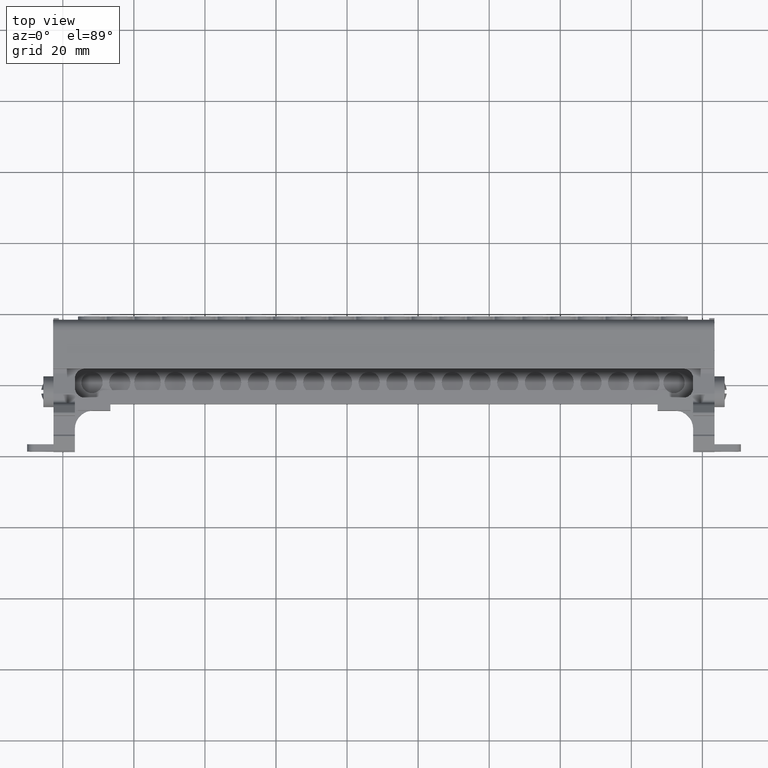
[diagram: clean part render]
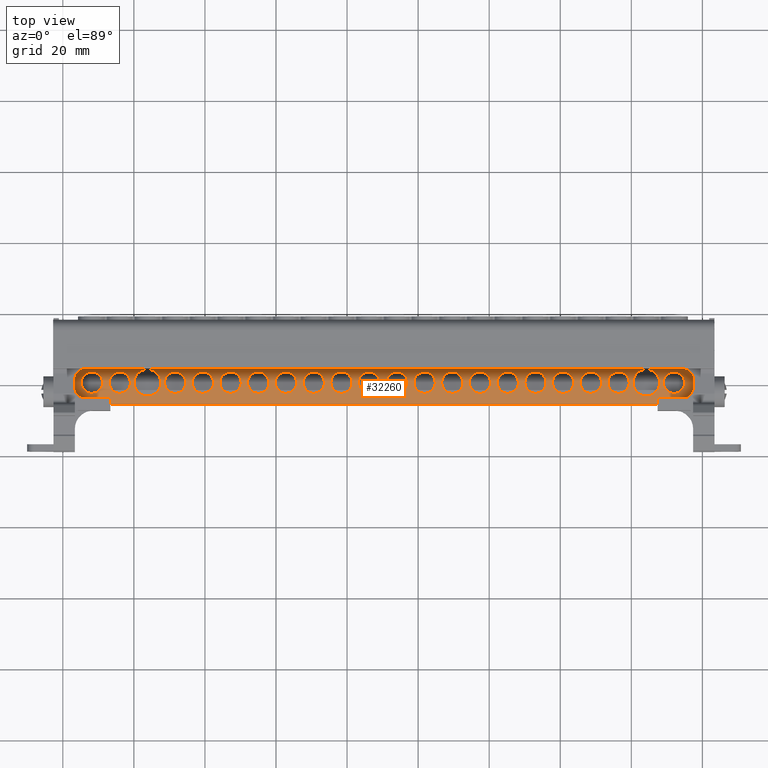
[diagram: same view with one face highlighted and labeled with its STEP entity id]
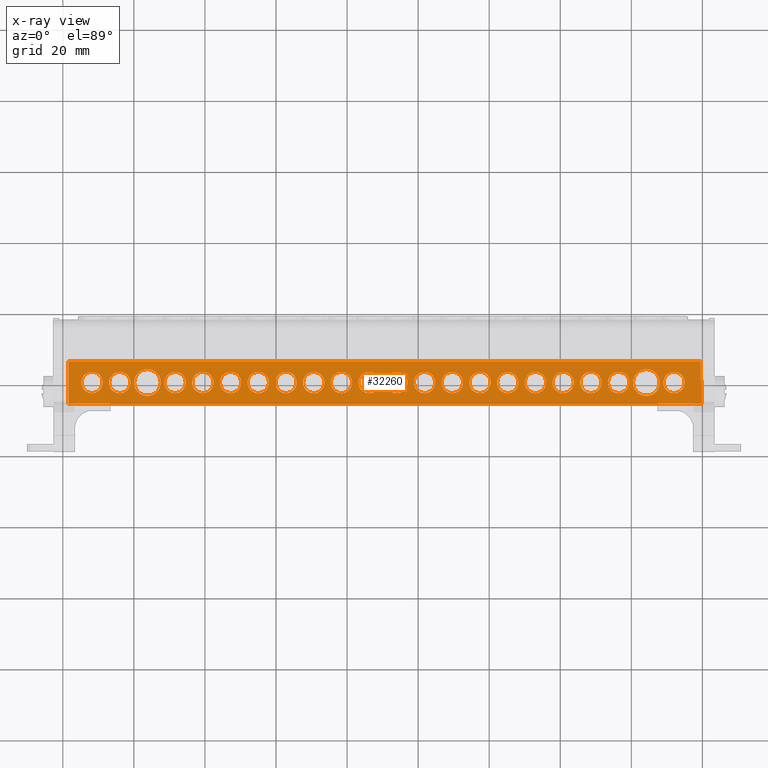
[diagram: x-ray of the same camera — body ghosted, the highlighted face saturated]
A machine part, top view. The second image highlights one B-rep face of the part: STEP entity #32260.
The next image is the same camera in x-ray: the body ghosted, the highlighted face saturated — about 0% of this face is hidden behind the body in this view.
In plain terms, the highlighted planar face has unit normal (0, 0, -1).
Its self-contained STEP definition (entity closure, byte-faithful):
#3568 = LINE ( 'NONE', #3598, #35998 ) ;
#3583 = DIRECTION ( 'NONE',  ( -1.100161628464488100E-014, 1.000000000000000000, 0.0000000000000000000 ) ) ;
#3598 = CARTESIAN_POINT ( 'NONE',  ( 87.39460350631402700, -33.46391012921537800, 99.25723811290791300 ) ) ;
#3623 = DIRECTION ( 'NONE',  ( 1.000000000000000000, 0.0000000000000000000, 0.0000000000000000000 ) ) ;
#3626 = DIRECTION ( 'NONE',  ( 0.0000000000000000000, 0.0000000000000000000, 1.000000000000000000 ) ) ;
#3637 = CARTESIAN_POINT ( 'NONE',  ( 68.61460350631354300, -39.46391012921721100, 99.25723811290791300 ) ) ;
#3641 = CARTESIAN_POINT ( 'NONE',  ( 53.01460350631354100, -39.46391012921721100, 99.25723811290791300 ) ) ;
#3647 = DIRECTION ( 'NONE',  ( 0.0000000000000000000, 0.0000000000000000000, 1.000000000000000000 ) ) ;
#3667 = DIRECTION ( 'NONE',  ( 1.000000000000000000, 0.0000000000000000000, 0.0000000000000000000 ) ) ;
#3757 = DIRECTION ( 'NONE',  ( 1.000000000000000000, 0.0000000000000000000, 0.0000000000000000000 ) ) ;
#3785 = DIRECTION ( 'NONE',  ( 0.0000000000000000000, 0.0000000000000000000, 1.000000000000000000 ) ) ;
#3789 = CARTESIAN_POINT ( 'NONE',  ( 60.81460350631353900, -39.46391012921721100, 99.25723811290791300 ) ) ;
#6039 = DIRECTION ( 'NONE',  ( 0.0000000000000000000, 0.0000000000000000000, 1.000000000000000000 ) ) ;
#6058 = DIRECTION ( 'NONE',  ( 1.000000000000000000, 0.0000000000000000000, 0.0000000000000000000 ) ) ;
#6059 = DIRECTION ( 'NONE',  ( 1.000000000000000000, 0.0000000000000000000, 0.0000000000000000000 ) ) ;
#6061 = CARTESIAN_POINT ( 'NONE',  ( -24.98539649368644800, -39.46391012921721100, 99.25723811290791300 ) ) ;
#6064 = CARTESIAN_POINT ( 'NONE',  ( 21.81460350631355300, -39.46391012921721100, 99.25723811290791300 ) ) ;
#6068 = DIRECTION ( 'NONE',  ( 0.0000000000000000000, 0.0000000000000000000, 1.000000000000000000 ) ) ;
#6070 = DIRECTION ( 'NONE',  ( 0.0000000000000000000, 0.0000000000000000000, 1.000000000000000000 ) ) ;
#6075 = DIRECTION ( 'NONE',  ( 1.000000000000000000, 0.0000000000000000000, 0.0000000000000000000 ) ) ;
#6077 = CARTESIAN_POINT ( 'NONE',  ( 37.41460350631355400, -39.46391012921721100, 99.25723811290791300 ) ) ;
#6082 = CARTESIAN_POINT ( 'NONE',  ( 29.61460350631355400, -39.46391012921721100, 99.25723811290791300 ) ) ;
#6083 = DIRECTION ( 'NONE',  ( 0.0000000000000000000, 0.0000000000000000000, 1.000000000000000000 ) ) ;
#6096 = DIRECTION ( 'NONE',  ( 1.000000000000000000, 0.0000000000000000000, 0.0000000000000000000 ) ) ;
#6136 = CARTESIAN_POINT ( 'NONE',  ( -9.385396493686446500, -39.46391012921721100, 99.25723811290791300 ) ) ;
#6137 = DIRECTION ( 'NONE',  ( 0.0000000000000000000, 0.0000000000000000000, 1.000000000000000000 ) ) ;
#6139 = DIRECTION ( 'NONE',  ( 1.000000000000000000, 0.0000000000000000000, 0.0000000000000000000 ) ) ;
#6584 = DIRECTION ( 'NONE',  ( 0.0000000000000000000, 0.0000000000000000000, 1.000000000000000000 ) ) ;
#6595 = CARTESIAN_POINT ( 'NONE',  ( 37.41460350631355400, -39.46391012921721100, 99.25723811290791300 ) ) ;
#6596 = DIRECTION ( 'NONE',  ( 0.0000000000000000000, 0.0000000000000000000, 1.000000000000000000 ) ) ;
#6602 = CARTESIAN_POINT ( 'NONE',  ( -63.98539649368643700, -39.46391012921720400, 99.25723811290791300 ) ) ;
#6603 = DIRECTION ( 'NONE',  ( 0.0000000000000000000, 0.0000000000000000000, 1.000000000000000000 ) ) ;
#6604 = CARTESIAN_POINT ( 'NONE',  ( -48.38539649368645000, -39.46391012921721100, 99.25723811290791300 ) ) ;
#6606 = DIRECTION ( 'NONE',  ( 1.000000000000000000, 0.0000000000000000000, 0.0000000000000000000 ) ) ;
#6608 = DIRECTION ( 'NONE',  ( 1.000000000000000000, 0.0000000000000000000, 0.0000000000000000000 ) ) ;
#6614 = LINE ( 'NONE', #6621, #17641 ) ;
#6615 = DIRECTION ( 'NONE',  ( 1.000000000000000000, 0.0000000000000000000, 0.0000000000000000000 ) ) ;
#6618 = DIRECTION ( 'NONE',  ( 1.000000000000000000, 0.0000000000000000000, 0.0000000000000000000 ) ) ;
#6621 = CARTESIAN_POINT ( 'NONE',  ( -78.43539649368644000, -45.46391012921720400, 99.25723811290791300 ) ) ;
#6622 = DIRECTION ( 'NONE',  ( 1.000000000000000000, 0.0000000000000000000, 0.0000000000000000000 ) ) ;
#6625 = CARTESIAN_POINT ( 'NONE',  ( 92.01460350631356300, -39.46391012921720400, 99.25723811290791300 ) ) ;
#6645 = DIRECTION ( 'NONE',  ( 0.0000000000000000000, 0.0000000000000000000, 1.000000000000000000 ) ) ;
#6657 = DIRECTION ( 'NONE',  ( 1.000000000000000000, 0.0000000000000000000, 0.0000000000000000000 ) ) ;
#6660 = DIRECTION ( 'NONE',  ( 0.0000000000000000000, 0.0000000000000000000, 1.000000000000000000 ) ) ;
#6661 = CARTESIAN_POINT ( 'NONE',  ( -9.385396493686446500, -39.46391012921721100, 99.25723811290791300 ) ) ;
#6666 = DIRECTION ( 'NONE',  ( 1.000000000000000000, 0.0000000000000000000, 0.0000000000000000000 ) ) ;
#6670 = CARTESIAN_POINT ( 'NONE',  ( 21.81460350631355300, -39.46391012921721100, 99.25723811290791300 ) ) ;
#6686 = DIRECTION ( 'NONE',  ( 0.0000000000000000000, 0.0000000000000000000, 1.000000000000000000 ) ) ;
#6687 = DIRECTION ( 'NONE',  ( 0.0000000000000000000, 0.0000000000000000000, 1.000000000000000000 ) ) ;
#6691 = CARTESIAN_POINT ( 'NONE',  ( 45.21460350631353700, -39.46391012921721100, 99.25723811290791300 ) ) ;
#6701 = DIRECTION ( 'NONE',  ( 1.000000000000000000, 0.0000000000000000000, 0.0000000000000000000 ) ) ;
#6712 = CARTESIAN_POINT ( 'NONE',  ( 29.61460350631355400, -39.46391012921721100, 99.25723811290791300 ) ) ;
#6713 = DIRECTION ( 'NONE',  ( 0.0000000000000000000, 0.0000000000000000000, 1.000000000000000000 ) ) ;
#6714 = DIRECTION ( 'NONE',  ( 0.0000000000000000000, 0.0000000000000000000, 1.000000000000000000 ) ) ;
#6724 = CARTESIAN_POINT ( 'NONE',  ( -32.78539649368645600, -39.46391012921721100, 99.25723811290791300 ) ) ;
#6725 = DIRECTION ( 'NONE',  ( 1.000000000000000000, 0.0000000000000000000, 0.0000000000000000000 ) ) ;
#6732 = DIRECTION ( 'NONE',  ( 0.0000000000000000000, 0.0000000000000000000, 1.000000000000000000 ) ) ;
#6733 = DIRECTION ( 'NONE',  ( 1.000000000000000000, 0.0000000000000000000, 0.0000000000000000000 ) ) ;
#6736 = CARTESIAN_POINT ( 'NONE',  ( -24.98539649368644800, -39.46391012921721100, 99.25723811290791300 ) ) ;
#6738 = DIRECTION ( 'NONE',  ( 1.000000000000000000, 0.0000000000000000000, 0.0000000000000000000 ) ) ;
#6752 = CARTESIAN_POINT ( 'NONE',  ( -71.78539649368643400, -39.46391012921720400, 99.25723811290791300 ) ) ;
#6760 = DIRECTION ( 'NONE',  ( 1.000000000000000000, 0.0000000000000000000, 0.0000000000000000000 ) ) ;
#6762 = DIRECTION ( 'NONE',  ( 0.0000000000000000000, 0.0000000000000000000, 1.000000000000000000 ) ) ;
#6767 = CARTESIAN_POINT ( 'NONE',  ( -56.18539649368645400, -39.46391012921720400, 99.25723811290791300 ) ) ;
#6781 = DIRECTION ( 'NONE',  ( 1.000000000000000000, 0.0000000000000000000, 0.0000000000000000000 ) ) ;
#6784 = DIRECTION ( 'NONE',  ( 0.0000000000000000000, 0.0000000000000000000, 1.000000000000000000 ) ) ;
#6796 = DIRECTION ( 'NONE',  ( 0.0000000000000000000, 0.0000000000000000000, 1.000000000000000000 ) ) ;
#6808 = DIRECTION ( 'NONE',  ( 1.000000000000000000, 0.0000000000000000000, 0.0000000000000000000 ) ) ;
#6812 = CARTESIAN_POINT ( 'NONE',  ( -17.18539649368644700, -39.46391012921721100, 99.25723811290791300 ) ) ;
#6813 = CARTESIAN_POINT ( 'NONE',  ( 6.214603506313549600, -39.46391012921721100, 99.25723811290791300 ) ) ;
#6815 = DIRECTION ( 'NONE',  ( 1.000000000000000000, 0.0000000000000000000, 0.0000000000000000000 ) ) ;
#6822 = DIRECTION ( 'NONE',  ( 0.0000000000000000000, 0.0000000000000000000, 1.000000000000000000 ) ) ;
#6843 = DIRECTION ( 'NONE',  ( 0.0000000000000000000, 0.0000000000000000000, 1.000000000000000000 ) ) ;
#6850 = DIRECTION ( 'NONE',  ( 1.000000000000000000, 0.0000000000000000000, 0.0000000000000000000 ) ) ;
#6865 = CARTESIAN_POINT ( 'NONE',  ( -1.585396493686452600, -39.46391012921721100, 99.25723811290791300 ) ) ;
#6911 = CARTESIAN_POINT ( 'NONE',  ( 76.41460350631355400, -39.46391012921720400, 99.25723811290791300 ) ) ;
#6919 = DIRECTION ( 'NONE',  ( 0.0000000000000000000, 0.0000000000000000000, 1.000000000000000000 ) ) ;
#6921 = DIRECTION ( 'NONE',  ( 1.000000000000000000, 0.0000000000000000000, 0.0000000000000000000 ) ) ;
#6948 = DIRECTION ( 'NONE',  ( 1.000000000000000000, 0.0000000000000000000, 0.0000000000000000000 ) ) ;
#6951 = CARTESIAN_POINT ( 'NONE',  ( 84.21460350631356600, -39.46391012921720400, 99.25723811290791300 ) ) ;
#6956 = DIRECTION ( 'NONE',  ( 0.0000000000000000000, 0.0000000000000000000, 1.000000000000000000 ) ) ;
#6958 = DIRECTION ( 'NONE',  ( 1.000000000000000000, 0.0000000000000000000, 0.0000000000000000000 ) ) ;
#6970 = DIRECTION ( 'NONE',  ( 0.0000000000000000000, 0.0000000000000000000, 1.000000000000000000 ) ) ;
#6971 = CARTESIAN_POINT ( 'NONE',  ( -40.58539649368644600, -39.46391012921721100, 99.25723811290791300 ) ) ;
#6983 = DIRECTION ( 'NONE',  ( 1.000000000000000000, 0.0000000000000000000, 0.0000000000000000000 ) ) ;
#6984 = DIRECTION ( 'NONE',  ( 0.0000000000000000000, 0.0000000000000000000, 1.000000000000000000 ) ) ;
#7000 = CARTESIAN_POINT ( 'NONE',  ( 14.01460350631355000, -39.46391012921721100, 99.25723811290791300 ) ) ;
#7181 = CARTESIAN_POINT ( 'NONE',  ( -86.25968632004149600, -45.40958989761869400, 99.25723811290791300 ) ) ;
#7198 = LINE ( 'NONE', #7181, #41928 ) ;
#7218 = DIRECTION ( 'NONE',  ( -0.0000000000000000000, -1.000000000000000000, -0.0000000000000000000 ) ) ;
#7223 = LINE ( 'NONE', #7225, #41953 ) ;
#7225 = CARTESIAN_POINT ( 'NONE',  ( -78.43539649368644000, -45.46391012921720400, 99.25723811290791300 ) ) ;
#7239 = DIRECTION ( 'NONE',  ( 1.000000000000000000, 1.123605221868004000E-014, 0.0000000000000000000 ) ) ;
#7781 = CARTESIAN_POINT ( 'NONE',  ( -66.60539649368669800, -45.09798989761760200, 99.25723811290791300 ) ) ;
#7789 = LINE ( 'NONE', #7781, #42120 ) ;
#7819 = DIRECTION ( 'NONE',  ( -1.123605221868004000E-014, 1.000000000000000000, 0.0000000000000000000 ) ) ;
#8632 = LINE ( 'NONE', #8660, #41786 ) ;
#8639 = DIRECTION ( 'NONE',  ( -1.000000000000000000, -0.0000000000000000000, -0.0000000000000000000 ) ) ;
#8660 = CARTESIAN_POINT ( 'NONE',  ( -78.43539649368644000, -33.46391012921720400, 99.25723811290791300 ) ) ;
#10246 = EDGE_CURVE ( 'NONE', #33229, #38248, #19170, .T. ) ;
#10975 = ORIENTED_EDGE ( 'NONE', *, *, #17167, .F. ) ;
#11014 = ORIENTED_EDGE ( 'NONE', *, *, #17294, .F. ) ;
#11015 = ORIENTED_EDGE ( 'NONE', *, *, #17801, .F. ) ;
#11017 = ORIENTED_EDGE ( 'NONE', *, *, #17204, .F. ) ;
#11028 = ORIENTED_EDGE ( 'NONE', *, *, #17736, .F. ) ;
#11030 = ORIENTED_EDGE ( 'NONE', *, *, #16472, .F. ) ;
#11035 = ORIENTED_EDGE ( 'NONE', *, *, #18356, .F. ) ;
#11036 = ORIENTED_EDGE ( 'NONE', *, *, #17362, .F. ) ;
#11037 = ORIENTED_EDGE ( 'NONE', *, *, #17921, .F. ) ;
#11045 = ORIENTED_EDGE ( 'NONE', *, *, #15704, .F. ) ;
#11047 = ORIENTED_EDGE ( 'NONE', *, *, #17768, .F. ) ;
#11051 = ORIENTED_EDGE ( 'NONE', *, *, #17163, .F. ) ;
#11059 = ORIENTED_EDGE ( 'NONE', *, *, #17221, .F. ) ;
#11063 = ORIENTED_EDGE ( 'NONE', *, *, #17908, .F. ) ;
#11065 = ORIENTED_EDGE ( 'NONE', *, *, #15656, .F. ) ;
#11068 = ORIENTED_EDGE ( 'NONE', *, *, #17803, .F. ) ;
#11069 = ORIENTED_EDGE ( 'NONE', *, *, #17689, .F. ) ;
#11071 = ORIENTED_EDGE ( 'NONE', *, *, #17728, .F. ) ;
#11072 = ORIENTED_EDGE ( 'NONE', *, *, #17292, .F. ) ;
#11073 = ORIENTED_EDGE ( 'NONE', *, *, #17386, .F. ) ;
#11075 = ORIENTED_EDGE ( 'NONE', *, *, #15647, .F. ) ;
#11076 = ORIENTED_EDGE ( 'NONE', *, *, #16551, .F. ) ;
#11079 = ORIENTED_EDGE ( 'NONE', *, *, #17824, .F. ) ;
#11080 = ORIENTED_EDGE ( 'NONE', *, *, #17837, .F. ) ;
#11081 = ORIENTED_EDGE ( 'NONE', *, *, #17319, .F. ) ;
#11083 = ORIENTED_EDGE ( 'NONE', *, *, #17448, .F. ) ;
#11084 = ORIENTED_EDGE ( 'NONE', *, *, #17255, .F. ) ;
#11085 = ORIENTED_EDGE ( 'NONE', *, *, #17272, .F. ) ;
#11086 = ORIENTED_EDGE ( 'NONE', *, *, #17282, .F. ) ;
#11087 = ORIENTED_EDGE ( 'NONE', *, *, #17135, .F. ) ;
#11088 = ORIENTED_EDGE ( 'NONE', *, *, #17700, .F. ) ;
#11089 = ORIENTED_EDGE ( 'NONE', *, *, #10246, .T. ) ;
#11091 = ORIENTED_EDGE ( 'NONE', *, *, #17706, .F. ) ;
#11093 = ORIENTED_EDGE ( 'NONE', *, *, #17399, .F. ) ;
#11094 = ORIENTED_EDGE ( 'NONE', *, *, #17914, .F. ) ;
#11096 = ORIENTED_EDGE ( 'NONE', *, *, #17756, .F. ) ;
#11097 = ORIENTED_EDGE ( 'NONE', *, *, #16527, .T. ) ;
#11104 = ORIENTED_EDGE ( 'NONE', *, *, #18191, .T. ) ;
#11107 = ORIENTED_EDGE ( 'NONE', *, *, #17341, .F. ) ;
#11114 = ORIENTED_EDGE ( 'NONE', *, *, #17253, .F. ) ;
#11115 = ORIENTED_EDGE ( 'NONE', *, *, #17863, .F. ) ;
#11116 = ORIENTED_EDGE ( 'NONE', *, *, #15615, .T. ) ;
#11120 = ORIENTED_EDGE ( 'NONE', *, *, #18047, .T. ) ;
#11123 = ORIENTED_EDGE ( 'NONE', *, *, #17702, .T. ) ;
#11124 = ORIENTED_EDGE ( 'NONE', *, *, #17764, .F. ) ;
#11125 = ORIENTED_EDGE ( 'NONE', *, *, #17317, .F. ) ;
#11126 = ORIENTED_EDGE ( 'NONE', *, *, #17382, .F. ) ;
#11128 = ORIENTED_EDGE ( 'NONE', *, *, #17257, .F. ) ;
#11130 = ORIENTED_EDGE ( 'NONE', *, *, #17373, .F. ) ;
#11131 = ORIENTED_EDGE ( 'NONE', *, *, #17345, .F. ) ;
#11134 = ORIENTED_EDGE ( 'NONE', *, *, #17942, .F. ) ;
#11135 = ORIENTED_EDGE ( 'NONE', *, *, #18216, .T. ) ;
#11136 = ORIENTED_EDGE ( 'NONE', *, *, #17775, .F. ) ;
#11140 = ORIENTED_EDGE ( 'NONE', *, *, #17708, .F. ) ;
#12624 = FACE_BOUND ( 'NONE', #21547, .T. ) ;
#12628 = FACE_BOUND ( 'NONE', #23728, .T. ) ;
#12630 = FACE_BOUND ( 'NONE', #21149, .T. ) ;
#12632 = FACE_BOUND ( 'NONE', #21725, .T. ) ;
#12634 = DIRECTION ( 'NONE',  ( 0.0000000000000000000, 0.0000000000000000000, -1.000000000000000000 ) ) ;
#12637 = FACE_BOUND ( 'NONE', #21746, .T. ) ;
#12650 = FACE_BOUND ( 'NONE', #23714, .T. ) ;
#12654 = FACE_OUTER_BOUND ( 'NONE', #23360, .T. ) ;
#12663 = FACE_BOUND ( 'NONE', #21238, .T. ) ;
#12668 = FACE_BOUND ( 'NONE', #23607, .T. ) ;
#12674 = FACE_BOUND ( 'NONE', #21452, .T. ) ;
#12678 = FACE_BOUND ( 'NONE', #23756, .T. ) ;
#12680 = FACE_BOUND ( 'NONE', #21348, .T. ) ;
#12685 = FACE_BOUND ( 'NONE', #21771, .T. ) ;
#12687 = FACE_BOUND ( 'NONE', #21367, .T. ) ;
#12689 = FACE_BOUND ( 'NONE', #21234, .T. ) ;
#12695 = CARTESIAN_POINT ( 'NONE',  ( -78.43539649368644000, -33.46391012921720400, 99.25723811290791300 ) ) ;
#12697 = FACE_BOUND ( 'NONE', #21277, .T. ) ;
#12705 = FACE_BOUND ( 'NONE', #21588, .T. ) ;
#12707 = DIRECTION ( 'NONE',  ( -1.000000000000000000, 0.0000000000000000000, -0.0000000000000000000 ) ) ;
#12713 = FACE_BOUND ( 'NONE', #21124, .T. ) ;
#12719 = FACE_BOUND ( 'NONE', #21324, .T. ) ;
#12723 = FACE_BOUND ( 'NONE', #21831, .T. ) ;
#12727 = PLANE ( 'NONE',  #42620 ) ;
#12731 = FACE_BOUND ( 'NONE', #21621, .T. ) ;
#12738 = FACE_BOUND ( 'NONE', #21392, .T. ) ;
#12740 = FACE_BOUND ( 'NONE', #21503, .T. ) ;
#15615 = EDGE_CURVE ( 'NONE', #38208, #33294, #3568, .T. ) ;
#15647 = EDGE_CURVE ( 'NONE', #38667, #38720, #26377, .T. ) ;
#15656 = EDGE_CURVE ( 'NONE', #38706, #38716, #26530, .T. ) ;
#15704 = EDGE_CURVE ( 'NONE', #38681, #38703, #26158, .T. ) ;
#16038 = AXIS2_PLACEMENT_3D ( 'NONE', #6767, #6784, #6760 ) ;
#16108 = AXIS2_PLACEMENT_3D ( 'NONE', #6813, #6796, #6815 ) ;
#16175 = VECTOR ( 'NONE', #36808, 1000.000000000000000 ) ;
#16187 = VECTOR ( 'NONE', #36526, 1000.000000000000000 ) ;
#16201 = VECTOR ( 'NONE', #36711, 1000.000000000000000 ) ;
#16472 = EDGE_CURVE ( 'NONE', #33226, #33294, #36550, .T. ) ;
#16527 = EDGE_CURVE ( 'NONE', #33226, #33160, #36709, .T. ) ;
#16551 = EDGE_CURVE ( 'NONE', #33229, #33160, #36768, .T. ) ;
#16925 = CIRCLE ( 'NONE', #16963, 3.000000000000002700 ) ;
#16963 = AXIS2_PLACEMENT_3D ( 'NONE', #34983, #34986, #34987 ) ;
#17027 = CIRCLE ( 'NONE', #17029, 3.000000000000002700 ) ;
#17029 = AXIS2_PLACEMENT_3D ( 'NONE', #34213, #34243, #34214 ) ;
#17031 = CIRCLE ( 'NONE', #17033, 3.000000000000002700 ) ;
#17033 = AXIS2_PLACEMENT_3D ( 'NONE', #34222, #34228, #34216 ) ;
#17039 = CIRCLE ( 'NONE', #17054, 3.000000000000002700 ) ;
#17054 = AXIS2_PLACEMENT_3D ( 'NONE', #35071, #35058, #35072 ) ;
#17061 = AXIS2_PLACEMENT_3D ( 'NONE', #35112, #35143, #35126 ) ;
#17067 = CIRCLE ( 'NONE', #17070, 3.000000000000002700 ) ;
#17070 = AXIS2_PLACEMENT_3D ( 'NONE', #35051, #35056, #35019 ) ;
#17076 = CIRCLE ( 'NONE', #17127, 3.750000000000003600 ) ;
#17114 = CIRCLE ( 'NONE', #17061, 3.749999999999996400 ) ;
#17127 = AXIS2_PLACEMENT_3D ( 'NONE', #35137, #35140, #35138 ) ;
#17135 = EDGE_CURVE ( 'NONE', #38615, #38674, #16925, .T. ) ;
#17158 = AXIS2_PLACEMENT_3D ( 'NONE', #34207, #34217, #34240 ) ;
#17160 = CIRCLE ( 'NONE', #17258, 3.000000000000002700 ) ;
#17163 = EDGE_CURVE ( 'NONE', #38680, #38692, #17067, .T. ) ;
#17164 = CIRCLE ( 'NONE', #17205, 3.000000000000002700 ) ;
#17167 = EDGE_CURVE ( 'NONE', #38704, #38723, #17039, .T. ) ;
#17172 = CIRCLE ( 'NONE', #17239, 3.000000000000002700 ) ;
#17173 = AXIS2_PLACEMENT_3D ( 'NONE', #34304, #34320, #34331 ) ;
#17187 = CIRCLE ( 'NONE', #17243, 3.000000000000001800 ) ;
#17202 = CIRCLE ( 'NONE', #17158, 3.000000000000002700 ) ;
#17204 = EDGE_CURVE ( 'NONE', #38662, #40348, #17114, .T. ) ;
#17205 = AXIS2_PLACEMENT_3D ( 'NONE', #34272, #34251, #34259 ) ;
#17213 = CIRCLE ( 'NONE', #17173, 3.000000000000002700 ) ;
#17215 = CIRCLE ( 'NONE', #17252, 3.000000000000002700 ) ;
#17221 = EDGE_CURVE ( 'NONE', #38624, #38633, #17076, .T. ) ;
#17239 = AXIS2_PLACEMENT_3D ( 'NONE', #34363, #34336, #34355 ) ;
#17241 = AXIS2_PLACEMENT_3D ( 'NONE', #34209, #34232, #34229 ) ;
#17243 = AXIS2_PLACEMENT_3D ( 'NONE', #34245, #34286, #34249 ) ;
#17250 = CIRCLE ( 'NONE', #17241, 2.999999999999995600 ) ;
#17252 = AXIS2_PLACEMENT_3D ( 'NONE', #34302, #34333, #34321 ) ;
#17253 = EDGE_CURVE ( 'NONE', #38616, #38621, #17027, .T. ) ;
#17255 = EDGE_CURVE ( 'NONE', #38722, #38650, #17031, .T. ) ;
#17257 = EDGE_CURVE ( 'NONE', #38655, #40345, #17250, .T. ) ;
#17258 = AXIS2_PLACEMENT_3D ( 'NONE', #34256, #34257, #34268 ) ;
#17262 = AXIS2_PLACEMENT_3D ( 'NONE', #6064, #6070, #6075 ) ;
#17272 = EDGE_CURVE ( 'NONE', #38707, #38699, #17202, .T. ) ;
#17282 = EDGE_CURVE ( 'NONE', #38648, #38659, #17164, .T. ) ;
#17283 = AXIS2_PLACEMENT_3D ( 'NONE', #6061, #6039, #6058 ) ;
#17286 = CIRCLE ( 'NONE', #17291, 2.999999999999999100 ) ;
#17292 = EDGE_CURVE ( 'NONE', #38672, #38632, #17187, .T. ) ;
#17291 = AXIS2_PLACEMENT_3D ( 'NONE', #6082, #6083, #6096 ) ;
#17294 = EDGE_CURVE ( 'NONE', #38678, #38715, #17160, .T. ) ;
#17299 = AXIS2_PLACEMENT_3D ( 'NONE', #34352, #34354, #34455 ) ;
#17306 = AXIS2_PLACEMENT_3D ( 'NONE', #6077, #6068, #6059 ) ;
#17316 = CIRCLE ( 'NONE', #17306, 3.000000000000002700 ) ;
#17317 = EDGE_CURVE ( 'NONE', #38720, #38667, #17215, .T. ) ;
#17319 = EDGE_CURVE ( 'NONE', #38716, #38706, #17213, .T. ) ;
#17327 = CIRCLE ( 'NONE', #17365, 3.000000000000002700 ) ;
#17335 = CIRCLE ( 'NONE', #17262, 3.000000000000002700 ) ;
#17341 = EDGE_CURVE ( 'NONE', #38628, #38684, #17172, .T. ) ;
#17345 = EDGE_CURVE ( 'NONE', #38638, #38652, #17327, .T. ) ;
#17359 = CIRCLE ( 'NONE', #17283, 3.000000000000002700 ) ;
#17361 = CIRCLE ( 'NONE', #17299, 3.000000000000002700 ) ;
#17362 = EDGE_CURVE ( 'NONE', #38703, #38681, #17361, .T. ) ;
#17365 = AXIS2_PLACEMENT_3D ( 'NONE', #34362, #34367, #34370 ) ;
#17373 = EDGE_CURVE ( 'NONE', #38646, #38630, #17359, .T. ) ;
#17382 = EDGE_CURVE ( 'NONE', #38666, #38705, #17316, .T. ) ;
#17386 = EDGE_CURVE ( 'NONE', #38634, #38641, #17335, .T. ) ;
#17398 = AXIS2_PLACEMENT_3D ( 'NONE', #6136, #6137, #6139 ) ;
#17399 = EDGE_CURVE ( 'NONE', #38682, #38701, #17286, .T. ) ;
#17448 = EDGE_CURVE ( 'NONE', #38613, #38636, #17455, .T. ) ;
#17455 = CIRCLE ( 'NONE', #17398, 3.000000000000001800 ) ;
#17639 = CIRCLE ( 'NONE', #17712, 3.000000000000002700 ) ;
#17641 = VECTOR ( 'NONE', #6615, 1000.000000000000000 ) ;
#17652 = CIRCLE ( 'NONE', #17654, 2.999999999999995600 ) ;
#17654 = AXIS2_PLACEMENT_3D ( 'NONE', #6602, #6603, #6606 ) ;
#17656 = CIRCLE ( 'NONE', #17710, 3.000000000000001800 ) ;
#17689 = EDGE_CURVE ( 'NONE', #38674, #38615, #17709, .T. ) ;
#17700 = EDGE_CURVE ( 'NONE', #38705, #38666, #17639, .T. ) ;
#17702 = EDGE_CURVE ( 'NONE', #38223, #38208, #6614, .T. ) ;
#17706 = EDGE_CURVE ( 'NONE', #40345, #38655, #17652, .T. ) ;
#17708 = EDGE_CURVE ( 'NONE', #38636, #38613, #17656, .T. ) ;
#17709 = CIRCLE ( 'NONE', #17722, 3.000000000000002700 ) ;
#17710 = AXIS2_PLACEMENT_3D ( 'NONE', #6661, #6660, #6657 ) ;
#17712 = AXIS2_PLACEMENT_3D ( 'NONE', #6595, #6596, #6608 ) ;
#17722 = AXIS2_PLACEMENT_3D ( 'NONE', #6604, #6584, #6618 ) ;
#17728 = EDGE_CURVE ( 'NONE', #38692, #38680, #17814, .T. ) ;
#17736 = EDGE_CURVE ( 'NONE', #38699, #38707, #17840, .T. ) ;
#17740 = CIRCLE ( 'NONE', #17868, 3.000000000000002700 ) ;
#17746 = AXIS2_PLACEMENT_3D ( 'NONE', #6736, #6714, #6733 ) ;
#17750 = AXIS2_PLACEMENT_3D ( 'NONE', #6691, #6686, #6701 ) ;
#17756 = EDGE_CURVE ( 'NONE', #38641, #38634, #17815, .T. ) ;
#17761 = CIRCLE ( 'NONE', #17770, 2.999999999999999100 ) ;
#17764 = EDGE_CURVE ( 'NONE', #38630, #38646, #17793, .T. ) ;
#17767 = AXIS2_PLACEMENT_3D ( 'NONE', #6724, #6732, #6738 ) ;
#17768 = EDGE_CURVE ( 'NONE', #38715, #38678, #17800, .T. ) ;
#17770 = AXIS2_PLACEMENT_3D ( 'NONE', #6712, #6713, #6725 ) ;
#17775 = EDGE_CURVE ( 'NONE', #38701, #38682, #17761, .T. ) ;
#17782 = AXIS2_PLACEMENT_3D ( 'NONE', #6625, #6645, #6622 ) ;
#17785 = AXIS2_PLACEMENT_3D ( 'NONE', #6670, #6687, #6666 ) ;
#17793 = CIRCLE ( 'NONE', #17746, 3.000000000000002700 ) ;
#17801 = EDGE_CURVE ( 'NONE', #38621, #38616, #18155, .T. ) ;
#17800 = CIRCLE ( 'NONE', #17767, 3.000000000000002700 ) ;
#17803 = EDGE_CURVE ( 'NONE', #40348, #38662, #18273, .T. ) ;
#17814 = CIRCLE ( 'NONE', #17782, 3.000000000000002700 ) ;
#17815 = CIRCLE ( 'NONE', #17785, 3.000000000000002700 ) ;
#17824 = EDGE_CURVE ( 'NONE', #38684, #38628, #17740, .T. ) ;
#17837 = EDGE_CURVE ( 'NONE', #38659, #38648, #18052, .T. ) ;
#17840 = CIRCLE ( 'NONE', #17750, 3.000000000000002700 ) ;
#17863 = EDGE_CURVE ( 'NONE', #38632, #38672, #41691, .T. ) ;
#17868 = AXIS2_PLACEMENT_3D ( 'NONE', #6812, #6822, #6808 ) ;
#17908 = EDGE_CURVE ( 'NONE', #38723, #38704, #41598, .T. ) ;
#17914 = EDGE_CURVE ( 'NONE', #38650, #38722, #41592, .T. ) ;
#17921 = EDGE_CURVE ( 'NONE', #38633, #38624, #41617, .T. ) ;
#17942 = EDGE_CURVE ( 'NONE', #38652, #38638, #41621, .T. ) ;
#18047 = EDGE_CURVE ( 'NONE', #38248, #38180, #8632, .T. ) ;
#18052 = CIRCLE ( 'NONE', #16108, 3.000000000000002700 ) ;
#18106 = AXIS2_PLACEMENT_3D ( 'NONE', #6752, #6762, #6781 ) ;
#18155 = CIRCLE ( 'NONE', #18106, 3.000000000000002700 ) ;
#18191 = EDGE_CURVE ( 'NONE', #38239, #38290, #7198, .T. ) ;
#18216 = EDGE_CURVE ( 'NONE', #38180, #38239, #7223, .T. ) ;
#18273 = CIRCLE ( 'NONE', #16038, 3.749999999999996400 ) ;
#18356 = EDGE_CURVE ( 'NONE', #38223, #38290, #7789, .T. ) ;
#19170 = LINE ( 'NONE', #19183, #35603 ) ;
#19173 = DIRECTION ( 'NONE',  ( 0.0000000000000000000, 1.000000000000000000, 0.0000000000000000000 ) ) ;
#19183 = CARTESIAN_POINT ( 'NONE',  ( 99.57460350631356500, -33.46391012921720400, 99.25723811290791300 ) ) ;
#21124 = EDGE_LOOP ( 'NONE', ( #11088, #11126 ) ) ;
#21149 = EDGE_LOOP ( 'NONE', ( #11136, #11093 ) ) ;
#21234 = EDGE_LOOP ( 'NONE', ( #11075, #11125 ) ) ;
#21238 = EDGE_LOOP ( 'NONE', ( #11028, #11085 ) ) ;
#21277 = EDGE_LOOP ( 'NONE', ( #11045, #11036 ) ) ;
#21324 = EDGE_LOOP ( 'NONE', ( #11065, #11081 ) ) ;
#21348 = EDGE_LOOP ( 'NONE', ( #11015, #11114 ) ) ;
#21367 = EDGE_LOOP ( 'NONE', ( #11091, #11128 ) ) ;
#21392 = EDGE_LOOP ( 'NONE', ( #11069, #11087 ) ) ;
#21452 = EDGE_LOOP ( 'NONE', ( #11094, #11084 ) ) ;
#21503 = EDGE_LOOP ( 'NONE', ( #11047, #11014 ) ) ;
#21547 = EDGE_LOOP ( 'NONE', ( #11124, #11130 ) ) ;
#21588 = EDGE_LOOP ( 'NONE', ( #11079, #11107 ) ) ;
#21621 = EDGE_LOOP ( 'NONE', ( #11140, #11083 ) ) ;
#21725 = EDGE_LOOP ( 'NONE', ( #11115, #11072 ) ) ;
#21746 = EDGE_LOOP ( 'NONE', ( #11080, #11086 ) ) ;
#21771 = EDGE_LOOP ( 'NONE', ( #11134, #11131 ) ) ;
#21831 = EDGE_LOOP ( 'NONE', ( #11096, #11073 ) ) ;
#23360 = EDGE_LOOP ( 'NONE', ( #11076, #11089, #11120, #11135, #11104, #11035, #11123, #11116, #11030, #11097 ) ) ;
#23607 = EDGE_LOOP ( 'NONE', ( #11063, #10975 ) ) ;
#23714 = EDGE_LOOP ( 'NONE', ( #11068, #11017 ) ) ;
#23728 = EDGE_LOOP ( 'NONE', ( #11037, #11059 ) ) ;
#23756 = EDGE_LOOP ( 'NONE', ( #11071, #11051 ) ) ;
#26158 = CIRCLE ( 'NONE', #26181, 3.000000000000002700 ) ;
#26181 = AXIS2_PLACEMENT_3D ( 'NONE', #3789, #3785, #3757 ) ;
#26377 = CIRCLE ( 'NONE', #26385, 3.000000000000002700 ) ;
#26385 = AXIS2_PLACEMENT_3D ( 'NONE', #3641, #3626, #3623 ) ;
#26530 = CIRCLE ( 'NONE', #26531, 3.000000000000002700 ) ;
#26531 = AXIS2_PLACEMENT_3D ( 'NONE', #3637, #3647, #3667 ) ;
#26919 = CARTESIAN_POINT ( 'NONE',  ( -78.43539649368644000, -33.46391012921720400, 99.25723811290791300 ) ) ;
#26945 = CARTESIAN_POINT ( 'NONE',  ( 87.39460350631416900, -45.46391012921720400, 99.25723811290791300 ) ) ;
#26949 = CARTESIAN_POINT ( 'NONE',  ( -78.43539649368644000, -45.40958989761860200, 99.25723811290791300 ) ) ;
#26959 = CARTESIAN_POINT ( 'NONE',  ( 99.57460350631356500, -33.46391012921720400, 99.25723811290791300 ) ) ;
#26966 = CARTESIAN_POINT ( 'NONE',  ( -66.60539649368669800, -45.46391012921720400, 99.25723811290791300 ) ) ;
#27041 = CARTESIAN_POINT ( 'NONE',  ( -66.60539649368659800, -45.40958989761847400, 99.25723811290791300 ) ) ;
#27330 = CARTESIAN_POINT ( 'NONE',  ( 80.46460350631355100, -39.46391012921720400, 99.25723811290791300 ) ) ;
#27332 = CARTESIAN_POINT ( 'NONE',  ( -20.18539649368645100, -39.46391012921721100, 99.25723811290791300 ) ) ;
#27333 = CARTESIAN_POINT ( 'NONE',  ( -21.98539649368644800, -39.46391012921721100, 99.25723811290791300 ) ) ;
#27334 = CARTESIAN_POINT ( 'NONE',  ( 1.414603506313549100, -39.46391012921721100, 99.25723811290791300 ) ) ;
#27339 = CARTESIAN_POINT ( 'NONE',  ( -68.78539649368643400, -39.46391012921720400, 99.25723811290791300 ) ) ;
#27342 = CARTESIAN_POINT ( 'NONE',  ( 87.96460350631356600, -39.46391012921720400, 99.25723811290791300 ) ) ;
#27344 = CARTESIAN_POINT ( 'NONE',  ( 18.81460350631354900, -39.46391012921721100, 99.25723811290791300 ) ) ;
#27347 = CARTESIAN_POINT ( 'NONE',  ( -12.38539649368645000, -39.46391012921721100, 99.25723811290791300 ) ) ;
#27349 = CARTESIAN_POINT ( 'NONE',  ( 11.01460350631354900, -39.46391012921721100, 99.25723811290791300 ) ) ;
#27351 = CARTESIAN_POINT ( 'NONE',  ( -6.385396493686444700, -39.46391012921721100, 99.25723811290791300 ) ) ;
#27361 = CARTESIAN_POINT ( 'NONE',  ( -74.78539649368644900, -39.46391012921720400, 99.25723811290791300 ) ) ;
#27379 = CARTESIAN_POINT ( 'NONE',  ( -51.38539649368645000, -39.46391012921721100, 99.25723811290791300 ) ) ;
#27394 = CARTESIAN_POINT ( 'NONE',  ( -29.78539649368645200, -39.46391012921721100, 99.25723811290791300 ) ) ;
#27395 = CARTESIAN_POINT ( 'NONE',  ( 3.214603506313547400, -39.46391012921721100, 99.25723811290791300 ) ) ;
#27396 = CARTESIAN_POINT ( 'NONE',  ( 65.61460350631354300, -39.46391012921721100, 99.25723811290791300 ) ) ;
#27399 = CARTESIAN_POINT ( 'NONE',  ( -27.98539649368645100, -39.46391012921721100, 99.25723811290791300 ) ) ;
#27401 = CARTESIAN_POINT ( 'NONE',  ( -37.58539649368644600, -39.46391012921721100, 99.25723811290791300 ) ) ;
#27404 = CARTESIAN_POINT ( 'NONE',  ( 9.214603506313551400, -39.46391012921721100, 99.25723811290791300 ) ) ;
#27408 = CARTESIAN_POINT ( 'NONE',  ( -35.78539649368645600, -39.46391012921721100, 99.25723811290791300 ) ) ;
#27413 = CARTESIAN_POINT ( 'NONE',  ( -45.38539649368645000, -39.46391012921721100, 99.25723811290791300 ) ) ;
#27415 = CARTESIAN_POINT ( 'NONE',  ( -59.93539649368645400, -39.46391012921720400, 99.25723811290791300 ) ) ;
#27418 = CARTESIAN_POINT ( 'NONE',  ( -66.98539649368642300, -39.46391012921720400, 99.25723811290791300 ) ) ;
#27423 = CARTESIAN_POINT ( 'NONE',  ( 26.61460350631355000, -39.46391012921721100, 99.25723811290791300 ) ) ;
#27426 = CARTESIAN_POINT ( 'NONE',  ( 48.21460350631354400, -39.46391012921721100, 99.25723811290791300 ) ) ;
#27427 = CARTESIAN_POINT ( 'NONE',  ( 32.61460350631355000, -39.46391012921721100, 99.25723811290791300 ) ) ;
#27429 = CARTESIAN_POINT ( 'NONE',  ( 89.01460350631356300, -39.46391012921720400, 99.25723811290791300 ) ) ;
#27430 = CARTESIAN_POINT ( 'NONE',  ( 56.01460350631354100, -39.46391012921721100, 99.25723811290791300 ) ) ;
#27433 = CARTESIAN_POINT ( 'NONE',  ( 57.81460350631353900, -39.46391012921721100, 99.25723811290791300 ) ) ;
#27434 = CARTESIAN_POINT ( 'NONE',  ( 73.41460350631355400, -39.46391012921720400, 99.25723811290791300 ) ) ;
#27435 = CARTESIAN_POINT ( 'NONE',  ( -14.18539649368644500, -39.46391012921721100, 99.25723811290791300 ) ) ;
#27436 = CARTESIAN_POINT ( 'NONE',  ( -4.585396493686454600, -39.46391012921721100, 99.25723811290791300 ) ) ;
#27437 = CARTESIAN_POINT ( 'NONE',  ( 63.81460350631354600, -39.46391012921721100, 99.25723811290791300 ) ) ;
#27439 = CARTESIAN_POINT ( 'NONE',  ( 71.61460350631354300, -39.46391012921721100, 99.25723811290791300 ) ) ;
#27442 = CARTESIAN_POINT ( 'NONE',  ( 95.01460350631356300, -39.46391012921720400, 99.25723811290791300 ) ) ;
#27443 = CARTESIAN_POINT ( 'NONE',  ( 42.21460350631353700, -39.46391012921721100, 99.25723811290791300 ) ) ;
#27444 = CARTESIAN_POINT ( 'NONE',  ( 40.41460350631355400, -39.46391012921721100, 99.25723811290791300 ) ) ;
#27447 = CARTESIAN_POINT ( 'NONE',  ( 24.81460350631355600, -39.46391012921721100, 99.25723811290791300 ) ) ;
#27448 = CARTESIAN_POINT ( 'NONE',  ( 17.01460350631355200, -39.46391012921721100, 99.25723811290791300 ) ) ;
#27452 = CARTESIAN_POINT ( 'NONE',  ( 34.41460350631354700, -39.46391012921721100, 99.25723811290791300 ) ) ;
#27483 = CARTESIAN_POINT ( 'NONE',  ( 50.01460350631353400, -39.46391012921721100, 99.25723811290791300 ) ) ;
#27492 = CARTESIAN_POINT ( 'NONE',  ( -43.58539649368645300, -39.46391012921721100, 99.25723811290791300 ) ) ;
#27515 = CARTESIAN_POINT ( 'NONE',  ( 79.41460350631355400, -39.46391012921720400, 99.25723811290791300 ) ) ;
#27877 = CARTESIAN_POINT ( 'NONE',  ( 87.39460350631412700, -45.40958989761676200, 99.25723811290791300 ) ) ;
#27887 = CARTESIAN_POINT ( 'NONE',  ( 99.57460350631356500, -38.84917717338272100, 99.25723811290791300 ) ) ;
#27897 = CARTESIAN_POINT ( 'NONE',  ( 99.86460350631394100, -45.40958989761662000, 99.25723811290791300 ) ) ;
#28523 = CARTESIAN_POINT ( 'NONE',  ( -52.43539649368645400, -39.46391012921720400, 99.25723811290791300 ) ) ;
#28558 = CARTESIAN_POINT ( 'NONE',  ( -60.98539649368644400, -39.46391012921720400, 99.25723811290791300 ) ) ;
#32260 = ADVANCED_FACE ( 'NONE', ( #12668, #12628, #12678, #12650, #12687, #12680, #12738, #12674, #12740, #12624, #12705, #12731, #12632, #12637, #12685, #12723, #12630, #12713, #12663, #12689, #12697, #12719, #12654 ), #12727, .F. ) ;
#33160 = VERTEX_POINT ( 'NONE', #43788 ) ;
#33226 = VERTEX_POINT ( 'NONE', #27897 ) ;
#33229 = VERTEX_POINT ( 'NONE', #27887 ) ;
#33294 = VERTEX_POINT ( 'NONE', #27877 ) ;
#34207 = CARTESIAN_POINT ( 'NONE',  ( 45.21460350631353700, -39.46391012921721100, 99.25723811290791300 ) ) ;
#34209 = CARTESIAN_POINT ( 'NONE',  ( -63.98539649368643700, -39.46391012921720400, 99.25723811290791300 ) ) ;
#34213 = CARTESIAN_POINT ( 'NONE',  ( -71.78539649368643400, -39.46391012921720400, 99.25723811290791300 ) ) ;
#34214 = DIRECTION ( 'NONE',  ( 1.000000000000000000, 0.0000000000000000000, 0.0000000000000000000 ) ) ;
#34216 = DIRECTION ( 'NONE',  ( 1.000000000000000000, 0.0000000000000000000, 0.0000000000000000000 ) ) ;
#34217 = DIRECTION ( 'NONE',  ( 0.0000000000000000000, 0.0000000000000000000, 1.000000000000000000 ) ) ;
#34222 = CARTESIAN_POINT ( 'NONE',  ( -40.58539649368644600, -39.46391012921721100, 99.25723811290791300 ) ) ;
#34228 = DIRECTION ( 'NONE',  ( 0.0000000000000000000, 0.0000000000000000000, 1.000000000000000000 ) ) ;
#34229 = DIRECTION ( 'NONE',  ( 1.000000000000000000, 0.0000000000000000000, 0.0000000000000000000 ) ) ;
#34232 = DIRECTION ( 'NONE',  ( 0.0000000000000000000, 0.0000000000000000000, 1.000000000000000000 ) ) ;
#34240 = DIRECTION ( 'NONE',  ( 1.000000000000000000, 0.0000000000000000000, 0.0000000000000000000 ) ) ;
#34243 = DIRECTION ( 'NONE',  ( 0.0000000000000000000, 0.0000000000000000000, 1.000000000000000000 ) ) ;
#34245 = CARTESIAN_POINT ( 'NONE',  ( -1.585396493686452600, -39.46391012921721100, 99.25723811290791300 ) ) ;
#34249 = DIRECTION ( 'NONE',  ( 1.000000000000000000, 0.0000000000000000000, 0.0000000000000000000 ) ) ;
#34251 = DIRECTION ( 'NONE',  ( 0.0000000000000000000, 0.0000000000000000000, 1.000000000000000000 ) ) ;
#34256 = CARTESIAN_POINT ( 'NONE',  ( -32.78539649368645600, -39.46391012921721100, 99.25723811290791300 ) ) ;
#34257 = DIRECTION ( 'NONE',  ( 0.0000000000000000000, 0.0000000000000000000, 1.000000000000000000 ) ) ;
#34259 = DIRECTION ( 'NONE',  ( 1.000000000000000000, 0.0000000000000000000, 0.0000000000000000000 ) ) ;
#34268 = DIRECTION ( 'NONE',  ( 1.000000000000000000, 0.0000000000000000000, 0.0000000000000000000 ) ) ;
#34272 = CARTESIAN_POINT ( 'NONE',  ( 6.214603506313549600, -39.46391012921721100, 99.25723811290791300 ) ) ;
#34286 = DIRECTION ( 'NONE',  ( 0.0000000000000000000, 0.0000000000000000000, 1.000000000000000000 ) ) ;
#34302 = CARTESIAN_POINT ( 'NONE',  ( 53.01460350631354100, -39.46391012921721100, 99.25723811290791300 ) ) ;
#34304 = CARTESIAN_POINT ( 'NONE',  ( 68.61460350631354300, -39.46391012921721100, 99.25723811290791300 ) ) ;
#34320 = DIRECTION ( 'NONE',  ( 0.0000000000000000000, 0.0000000000000000000, 1.000000000000000000 ) ) ;
#34321 = DIRECTION ( 'NONE',  ( 1.000000000000000000, 0.0000000000000000000, 0.0000000000000000000 ) ) ;
#34331 = DIRECTION ( 'NONE',  ( 1.000000000000000000, 0.0000000000000000000, 0.0000000000000000000 ) ) ;
#34333 = DIRECTION ( 'NONE',  ( 0.0000000000000000000, 0.0000000000000000000, 1.000000000000000000 ) ) ;
#34336 = DIRECTION ( 'NONE',  ( 0.0000000000000000000, 0.0000000000000000000, 1.000000000000000000 ) ) ;
#34352 = CARTESIAN_POINT ( 'NONE',  ( 60.81460350631353900, -39.46391012921721100, 99.25723811290791300 ) ) ;
#34354 = DIRECTION ( 'NONE',  ( 0.0000000000000000000, 0.0000000000000000000, 1.000000000000000000 ) ) ;
#34355 = DIRECTION ( 'NONE',  ( 1.000000000000000000, 0.0000000000000000000, 0.0000000000000000000 ) ) ;
#34362 = CARTESIAN_POINT ( 'NONE',  ( 14.01460350631355000, -39.46391012921721100, 99.25723811290791300 ) ) ;
#34363 = CARTESIAN_POINT ( 'NONE',  ( -17.18539649368644700, -39.46391012921721100, 99.25723811290791300 ) ) ;
#34367 = DIRECTION ( 'NONE',  ( 0.0000000000000000000, 0.0000000000000000000, 1.000000000000000000 ) ) ;
#34370 = DIRECTION ( 'NONE',  ( 1.000000000000000000, 0.0000000000000000000, 0.0000000000000000000 ) ) ;
#34455 = DIRECTION ( 'NONE',  ( 1.000000000000000000, 0.0000000000000000000, 0.0000000000000000000 ) ) ;
#34983 = CARTESIAN_POINT ( 'NONE',  ( -48.38539649368645000, -39.46391012921721100, 99.25723811290791300 ) ) ;
#34986 = DIRECTION ( 'NONE',  ( 0.0000000000000000000, 0.0000000000000000000, 1.000000000000000000 ) ) ;
#34987 = DIRECTION ( 'NONE',  ( 1.000000000000000000, 0.0000000000000000000, 0.0000000000000000000 ) ) ;
#35019 = DIRECTION ( 'NONE',  ( 1.000000000000000000, 0.0000000000000000000, 0.0000000000000000000 ) ) ;
#35051 = CARTESIAN_POINT ( 'NONE',  ( 92.01460350631356300, -39.46391012921720400, 99.25723811290791300 ) ) ;
#35056 = DIRECTION ( 'NONE',  ( 0.0000000000000000000, 0.0000000000000000000, 1.000000000000000000 ) ) ;
#35058 = DIRECTION ( 'NONE',  ( 0.0000000000000000000, 0.0000000000000000000, 1.000000000000000000 ) ) ;
#35071 = CARTESIAN_POINT ( 'NONE',  ( 76.41460350631355400, -39.46391012921720400, 99.25723811290791300 ) ) ;
#35072 = DIRECTION ( 'NONE',  ( 1.000000000000000000, 0.0000000000000000000, 0.0000000000000000000 ) ) ;
#35112 = CARTESIAN_POINT ( 'NONE',  ( -56.18539649368645400, -39.46391012921720400, 99.25723811290791300 ) ) ;
#35126 = DIRECTION ( 'NONE',  ( 1.000000000000000000, 0.0000000000000000000, 0.0000000000000000000 ) ) ;
#35137 = CARTESIAN_POINT ( 'NONE',  ( 84.21460350631356600, -39.46391012921720400, 99.25723811290791300 ) ) ;
#35138 = DIRECTION ( 'NONE',  ( 1.000000000000000000, 0.0000000000000000000, 0.0000000000000000000 ) ) ;
#35140 = DIRECTION ( 'NONE',  ( 0.0000000000000000000, 0.0000000000000000000, 1.000000000000000000 ) ) ;
#35143 = DIRECTION ( 'NONE',  ( 0.0000000000000000000, 0.0000000000000000000, 1.000000000000000000 ) ) ;
#35603 = VECTOR ( 'NONE', #19173, 1000.000000000000000 ) ;
#35998 = VECTOR ( 'NONE', #3583, 1000.000000000000000 ) ;
#36526 = DIRECTION ( 'NONE',  ( -1.000000000000000000, -1.100161628464488100E-014, 0.0000000000000000000 ) ) ;
#36550 = LINE ( 'NONE', #36556, #16187 ) ;
#36556 = CARTESIAN_POINT ( 'NONE',  ( -78.43539649368631200, -45.40958989761858100, 99.25723811290791300 ) ) ;
#36681 = CARTESIAN_POINT ( 'NONE',  ( -78.43539649368638300, -38.84917717338468200, 99.25723811290791300 ) ) ;
#36709 = LINE ( 'NONE', #36741, #16201 ) ;
#36711 = DIRECTION ( 'NONE',  ( -1.100161628464488100E-014, 1.000000000000000000, 0.0000000000000000000 ) ) ;
#36741 = CARTESIAN_POINT ( 'NONE',  ( 99.86460350631371300, -33.46391012921524300, 99.25723811290791300 ) ) ;
#36768 = LINE ( 'NONE', #36681, #16175 ) ;
#36808 = DIRECTION ( 'NONE',  ( 1.000000000000000000, 1.101172723983080000E-014, -0.0000000000000000000 ) ) ;
#38180 = VERTEX_POINT ( 'NONE', #26919 ) ;
#38208 = VERTEX_POINT ( 'NONE', #26945 ) ;
#38223 = VERTEX_POINT ( 'NONE', #26966 ) ;
#38239 = VERTEX_POINT ( 'NONE', #26949 ) ;
#38248 = VERTEX_POINT ( 'NONE', #26959 ) ;
#38290 = VERTEX_POINT ( 'NONE', #27041 ) ;
#38613 = VERTEX_POINT ( 'NONE', #27347 ) ;
#38615 = VERTEX_POINT ( 'NONE', #27379 ) ;
#38616 = VERTEX_POINT ( 'NONE', #27361 ) ;
#38621 = VERTEX_POINT ( 'NONE', #27339 ) ;
#38624 = VERTEX_POINT ( 'NONE', #27330 ) ;
#38628 = VERTEX_POINT ( 'NONE', #27332 ) ;
#38630 = VERTEX_POINT ( 'NONE', #27333 ) ;
#38632 = VERTEX_POINT ( 'NONE', #27334 ) ;
#38633 = VERTEX_POINT ( 'NONE', #27342 ) ;
#38634 = VERTEX_POINT ( 'NONE', #27344 ) ;
#38636 = VERTEX_POINT ( 'NONE', #27351 ) ;
#38638 = VERTEX_POINT ( 'NONE', #27349 ) ;
#38641 = VERTEX_POINT ( 'NONE', #27447 ) ;
#38646 = VERTEX_POINT ( 'NONE', #27399 ) ;
#38648 = VERTEX_POINT ( 'NONE', #27395 ) ;
#38650 = VERTEX_POINT ( 'NONE', #27401 ) ;
#38652 = VERTEX_POINT ( 'NONE', #27448 ) ;
#38655 = VERTEX_POINT ( 'NONE', #27418 ) ;
#38659 = VERTEX_POINT ( 'NONE', #27404 ) ;
#38662 = VERTEX_POINT ( 'NONE', #27415 ) ;
#38666 = VERTEX_POINT ( 'NONE', #27452 ) ;
#38667 = VERTEX_POINT ( 'NONE', #27430 ) ;
#38672 = VERTEX_POINT ( 'NONE', #27436 ) ;
#38674 = VERTEX_POINT ( 'NONE', #27413 ) ;
#38678 = VERTEX_POINT ( 'NONE', #27408 ) ;
#38680 = VERTEX_POINT ( 'NONE', #27429 ) ;
#38681 = VERTEX_POINT ( 'NONE', #27437 ) ;
#38682 = VERTEX_POINT ( 'NONE', #27423 ) ;
#38684 = VERTEX_POINT ( 'NONE', #27435 ) ;
#38692 = VERTEX_POINT ( 'NONE', #27442 ) ;
#38699 = VERTEX_POINT ( 'NONE', #27426 ) ;
#38701 = VERTEX_POINT ( 'NONE', #27427 ) ;
#38703 = VERTEX_POINT ( 'NONE', #27433 ) ;
#38704 = VERTEX_POINT ( 'NONE', #27434 ) ;
#38705 = VERTEX_POINT ( 'NONE', #27444 ) ;
#38706 = VERTEX_POINT ( 'NONE', #27439 ) ;
#38707 = VERTEX_POINT ( 'NONE', #27443 ) ;
#38715 = VERTEX_POINT ( 'NONE', #27394 ) ;
#38716 = VERTEX_POINT ( 'NONE', #27396 ) ;
#38720 = VERTEX_POINT ( 'NONE', #27483 ) ;
#38722 = VERTEX_POINT ( 'NONE', #27492 ) ;
#38723 = VERTEX_POINT ( 'NONE', #27515 ) ;
#40345 = VERTEX_POINT ( 'NONE', #28558 ) ;
#40348 = VERTEX_POINT ( 'NONE', #28523 ) ;
#41592 = CIRCLE ( 'NONE', #41613, 3.000000000000002700 ) ;
#41598 = CIRCLE ( 'NONE', #41602, 3.000000000000002700 ) ;
#41602 = AXIS2_PLACEMENT_3D ( 'NONE', #6911, #6919, #6921 ) ;
#41613 = AXIS2_PLACEMENT_3D ( 'NONE', #6971, #6956, #6948 ) ;
#41617 = CIRCLE ( 'NONE', #41620, 3.750000000000003600 ) ;
#41620 = AXIS2_PLACEMENT_3D ( 'NONE', #6951, #6970, #6958 ) ;
#41621 = CIRCLE ( 'NONE', #41646, 3.000000000000002700 ) ;
#41646 = AXIS2_PLACEMENT_3D ( 'NONE', #7000, #6984, #6983 ) ;
#41657 = AXIS2_PLACEMENT_3D ( 'NONE', #6865, #6843, #6850 ) ;
#41691 = CIRCLE ( 'NONE', #41657, 3.000000000000001800 ) ;
#41786 = VECTOR ( 'NONE', #8639, 1000.000000000000000 ) ;
#41928 = VECTOR ( 'NONE', #7239, 1000.000000000000000 ) ;
#41953 = VECTOR ( 'NONE', #7218, 1000.000000000000000 ) ;
#42120 = VECTOR ( 'NONE', #7819, 1000.000000000000000 ) ;
#42620 = AXIS2_PLACEMENT_3D ( 'NONE', #12695, #12634, #12707 ) ;
#43788 = CARTESIAN_POINT ( 'NONE',  ( 99.86460350631377000, -38.84917696317541700, 99.25723811290791300 ) ) ;